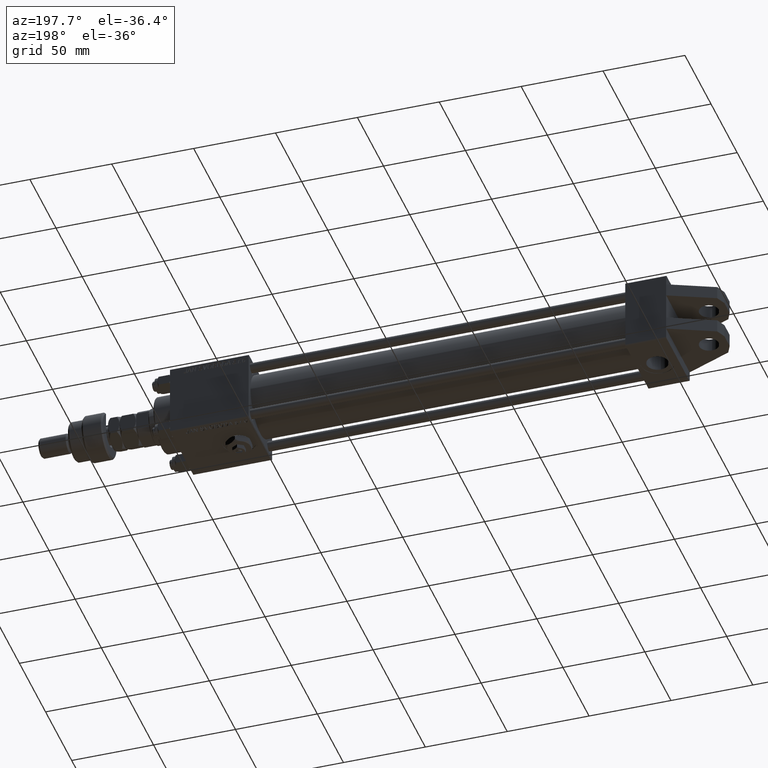
[diagram: clean part render]
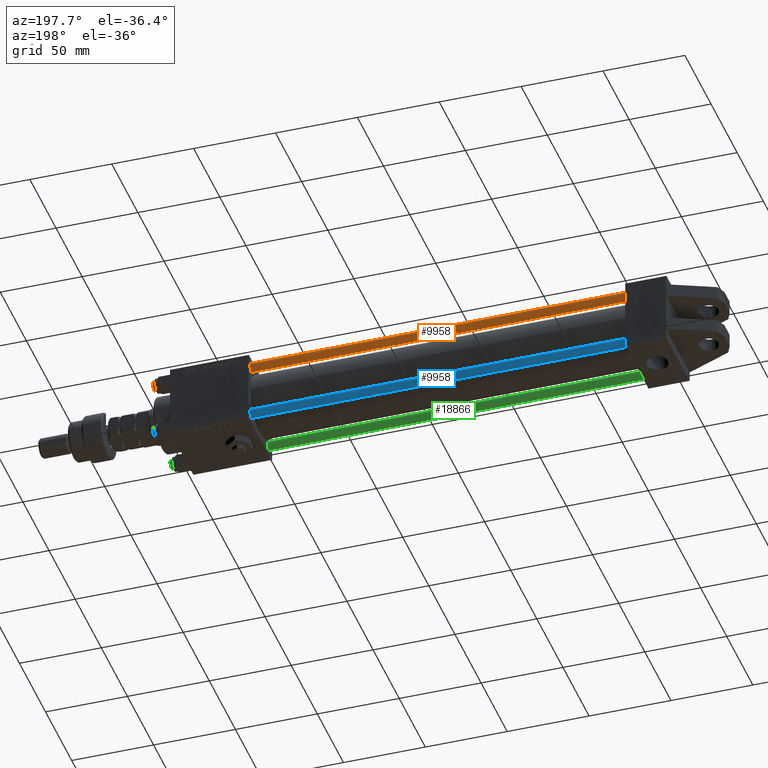
[diagram: same view with three faces highlighted in distinct colors, each labeled with its STEP entity id]
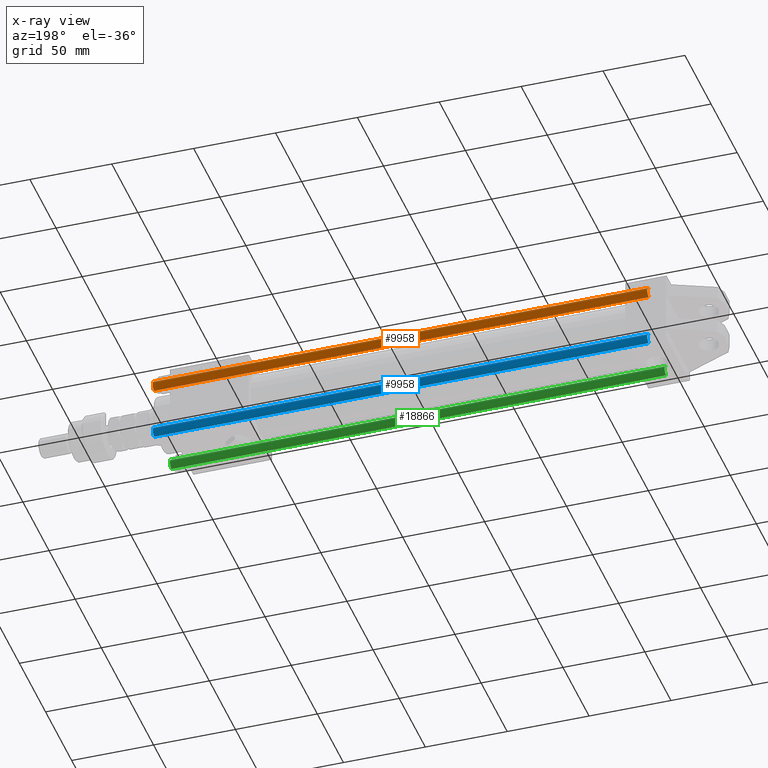
[diagram: x-ray of the same camera — body ghosted, the three highlighted faces saturated]
A machine part, auxiliary view with three faces highlighted in distinct colors.
The next image is the same camera in x-ray (body ghosted, the three faces saturated) — at least one of them is partly hidden behind the body in this view.
Their STEP definitions:

[orange] entity #9958 — the highlighted cylindrical surface (edge-blend (fillet) strip) has radius 3 mm, axis along (-1, 0, -0).
#176 = DIRECTION ( 'NONE',  ( -0.000000000000000000, -0.000000000000000000, -1.000000000000000000 ) ) ;
#1335 = AXIS2_PLACEMENT_3D ( 'NONE', #29165, #176, #33853 ) ;
#1406 = VERTEX_POINT ( 'NONE', #25758 ) ;
#3557 = LINE ( 'NONE', #33088, #8544 ) ;
#4449 = VERTEX_POINT ( 'NONE', #43868 ) ;
#4872 = FACE_OUTER_BOUND ( 'NONE', #14858, .T. ) ;
#5733 = ORIENTED_EDGE ( 'NONE', *, *, #7036, .T. ) ;
#7036 = EDGE_CURVE ( 'NONE', #1406, #4449, #22357, .T. ) ;
#8544 = VECTOR ( 'NONE', #42156, 1000.000000000000000 ) ;
#9958 = ADVANCED_FACE ( 'NONE', ( #4872 ), #34667, .T. ) ;
#10047 = AXIS2_PLACEMENT_3D ( 'NONE', #51326, #30407, #43342 ) ;
#12657 = CARTESIAN_POINT ( 'NONE',  ( 3.000000000000000444, 3.673940397442060361E-16, 302.5000000000000000 ) ) ;
#13033 = LINE ( 'NONE', #16886, #46148 ) ;
#14185 = ORIENTED_EDGE ( 'NONE', *, *, #30506, .T. ) ;
#14858 = EDGE_LOOP ( 'NONE', ( #14185, #47245, #5733, #53392 ) ) ;
#15129 = CARTESIAN_POINT ( 'NONE',  ( 0.000000000000000000, 0.000000000000000000, 0.5000000000001114664 ) ) ;
#16886 = CARTESIAN_POINT ( 'NONE',  ( -3.000000000000000444, 0.000000000000000000, 303.0000000000000000 ) ) ;
#17050 = AXIS2_PLACEMENT_3D ( 'NONE', #15129, #39954, #48486 ) ;
#22357 = CIRCLE ( 'NONE', #17050, 3.000000000000000444 ) ;
#25758 = CARTESIAN_POINT ( 'NONE',  ( 3.000000000000000444, 3.673940397442060361E-16, 0.5000000000001114664 ) ) ;
#27098 = EDGE_CURVE ( 'NONE', #33071, #4449, #13033, .T. ) ;
#29165 = CARTESIAN_POINT ( 'NONE',  ( 0.000000000000000000, 0.000000000000000000, 303.0000000000000000 ) ) ;
#30407 = DIRECTION ( 'NONE',  ( 0.000000000000000000, 0.000000000000000000, -1.000000000000000000 ) ) ;
#30506 = EDGE_CURVE ( 'NONE', #33071, #38484, #33841, .T. ) ;
#33071 = VERTEX_POINT ( 'NONE', #52071 ) ;
#33088 = CARTESIAN_POINT ( 'NONE',  ( 3.000000000000000444, 3.673940397442060361E-16, 303.0000000000000000 ) ) ;
#33841 = CIRCLE ( 'NONE', #10047, 3.000000000000000444 ) ;
#33853 = DIRECTION ( 'NONE',  ( -1.000000000000000000, 0.000000000000000000, 0.000000000000000000 ) ) ;
#34667 = CYLINDRICAL_SURFACE ( 'NONE', #1335, 3.000000000000000444 ) ;
#37612 = EDGE_CURVE ( 'NONE', #38484, #1406, #3557, .T. ) ;
#37862 = DIRECTION ( 'NONE',  ( -0.000000000000000000, -0.000000000000000000, -1.000000000000000000 ) ) ;
#38484 = VERTEX_POINT ( 'NONE', #12657 ) ;
#39954 = DIRECTION ( 'NONE',  ( -0.000000000000000000, -0.000000000000000000, 1.000000000000000000 ) ) ;
#42156 = DIRECTION ( 'NONE',  ( -0.000000000000000000, -0.000000000000000000, -1.000000000000000000 ) ) ;
#43342 = DIRECTION ( 'NONE',  ( 1.000000000000000000, 0.000000000000000000, 0.000000000000000000 ) ) ;
#43868 = CARTESIAN_POINT ( 'NONE',  ( -3.000000000000000444, 0.000000000000000000, 0.5000000000001114664 ) ) ;
#46148 = VECTOR ( 'NONE', #37862, 1000.000000000000000 ) ;
#47245 = ORIENTED_EDGE ( 'NONE', *, *, #37612, .T. ) ;
#48486 = DIRECTION ( 'NONE',  ( 1.000000000000000000, 0.000000000000000000, 0.000000000000000000 ) ) ;
#51326 = CARTESIAN_POINT ( 'NONE',  ( 0.000000000000000000, 0.000000000000000000, 302.5000000000000000 ) ) ;
#52071 = CARTESIAN_POINT ( 'NONE',  ( -3.000000000000000444, 0.000000000000000000, 302.5000000000000000 ) ) ;
#53392 = ORIENTED_EDGE ( 'NONE', *, *, #27098, .F. ) ;

[blue] entity #9958 — the highlighted cylindrical surface (edge-blend (fillet) strip) has radius 3 mm, axis along (1, -0, -0).
#176 = DIRECTION ( 'NONE',  ( -0.000000000000000000, -0.000000000000000000, -1.000000000000000000 ) ) ;
#1335 = AXIS2_PLACEMENT_3D ( 'NONE', #29165, #176, #33853 ) ;
#1406 = VERTEX_POINT ( 'NONE', #25758 ) ;
#3557 = LINE ( 'NONE', #33088, #8544 ) ;
#4449 = VERTEX_POINT ( 'NONE', #43868 ) ;
#4872 = FACE_OUTER_BOUND ( 'NONE', #14858, .T. ) ;
#5733 = ORIENTED_EDGE ( 'NONE', *, *, #7036, .T. ) ;
#7036 = EDGE_CURVE ( 'NONE', #1406, #4449, #22357, .T. ) ;
#8544 = VECTOR ( 'NONE', #42156, 1000.000000000000000 ) ;
#9958 = ADVANCED_FACE ( 'NONE', ( #4872 ), #34667, .T. ) ;
#10047 = AXIS2_PLACEMENT_3D ( 'NONE', #51326, #30407, #43342 ) ;
#12657 = CARTESIAN_POINT ( 'NONE',  ( 3.000000000000000444, 3.673940397442060361E-16, 302.5000000000000000 ) ) ;
#13033 = LINE ( 'NONE', #16886, #46148 ) ;
#14185 = ORIENTED_EDGE ( 'NONE', *, *, #30506, .T. ) ;
#14858 = EDGE_LOOP ( 'NONE', ( #14185, #47245, #5733, #53392 ) ) ;
#15129 = CARTESIAN_POINT ( 'NONE',  ( 0.000000000000000000, 0.000000000000000000, 0.5000000000001114664 ) ) ;
#16886 = CARTESIAN_POINT ( 'NONE',  ( -3.000000000000000444, 0.000000000000000000, 303.0000000000000000 ) ) ;
#17050 = AXIS2_PLACEMENT_3D ( 'NONE', #15129, #39954, #48486 ) ;
#22357 = CIRCLE ( 'NONE', #17050, 3.000000000000000444 ) ;
#25758 = CARTESIAN_POINT ( 'NONE',  ( 3.000000000000000444, 3.673940397442060361E-16, 0.5000000000001114664 ) ) ;
#27098 = EDGE_CURVE ( 'NONE', #33071, #4449, #13033, .T. ) ;
#29165 = CARTESIAN_POINT ( 'NONE',  ( 0.000000000000000000, 0.000000000000000000, 303.0000000000000000 ) ) ;
#30407 = DIRECTION ( 'NONE',  ( 0.000000000000000000, 0.000000000000000000, -1.000000000000000000 ) ) ;
#30506 = EDGE_CURVE ( 'NONE', #33071, #38484, #33841, .T. ) ;
#33071 = VERTEX_POINT ( 'NONE', #52071 ) ;
#33088 = CARTESIAN_POINT ( 'NONE',  ( 3.000000000000000444, 3.673940397442060361E-16, 303.0000000000000000 ) ) ;
#33841 = CIRCLE ( 'NONE', #10047, 3.000000000000000444 ) ;
#33853 = DIRECTION ( 'NONE',  ( -1.000000000000000000, 0.000000000000000000, 0.000000000000000000 ) ) ;
#34667 = CYLINDRICAL_SURFACE ( 'NONE', #1335, 3.000000000000000444 ) ;
#37612 = EDGE_CURVE ( 'NONE', #38484, #1406, #3557, .T. ) ;
#37862 = DIRECTION ( 'NONE',  ( -0.000000000000000000, -0.000000000000000000, -1.000000000000000000 ) ) ;
#38484 = VERTEX_POINT ( 'NONE', #12657 ) ;
#39954 = DIRECTION ( 'NONE',  ( -0.000000000000000000, -0.000000000000000000, 1.000000000000000000 ) ) ;
#42156 = DIRECTION ( 'NONE',  ( -0.000000000000000000, -0.000000000000000000, -1.000000000000000000 ) ) ;
#43342 = DIRECTION ( 'NONE',  ( 1.000000000000000000, 0.000000000000000000, 0.000000000000000000 ) ) ;
#43868 = CARTESIAN_POINT ( 'NONE',  ( -3.000000000000000444, 0.000000000000000000, 0.5000000000001114664 ) ) ;
#46148 = VECTOR ( 'NONE', #37862, 1000.000000000000000 ) ;
#47245 = ORIENTED_EDGE ( 'NONE', *, *, #37612, .T. ) ;
#48486 = DIRECTION ( 'NONE',  ( 1.000000000000000000, 0.000000000000000000, 0.000000000000000000 ) ) ;
#51326 = CARTESIAN_POINT ( 'NONE',  ( 0.000000000000000000, 0.000000000000000000, 302.5000000000000000 ) ) ;
#52071 = CARTESIAN_POINT ( 'NONE',  ( -3.000000000000000444, 0.000000000000000000, 302.5000000000000000 ) ) ;
#53392 = ORIENTED_EDGE ( 'NONE', *, *, #27098, .F. ) ;

[green] entity #18866 — the highlighted cylindrical surface (edge-blend (fillet) strip) has radius 3 mm, axis along (-1, -0, 0).
#1406 = VERTEX_POINT ( 'NONE', #25758 ) ;
#3557 = LINE ( 'NONE', #33088, #8544 ) ;
#3842 = DIRECTION ( 'NONE',  ( 1.000000000000000000, 0.000000000000000000, 0.000000000000000000 ) ) ;
#4449 = VERTEX_POINT ( 'NONE', #43868 ) ;
#5892 = CYLINDRICAL_SURFACE ( 'NONE', #10342, 3.000000000000000444 ) ;
#7343 = EDGE_LOOP ( 'NONE', ( #36929, #10951, #16801, #13746 ) ) ;
#8544 = VECTOR ( 'NONE', #42156, 1000.000000000000000 ) ;
#10342 = AXIS2_PLACEMENT_3D ( 'NONE', #39277, #18046, #34608 ) ;
#10951 = ORIENTED_EDGE ( 'NONE', *, *, #37420, .T. ) ;
#12657 = CARTESIAN_POINT ( 'NONE',  ( 3.000000000000000444, 3.673940397442060361E-16, 302.5000000000000000 ) ) ;
#13033 = LINE ( 'NONE', #16886, #46148 ) ;
#13538 = DIRECTION ( 'NONE',  ( 0.000000000000000000, 0.000000000000000000, -1.000000000000000000 ) ) ;
#13746 = ORIENTED_EDGE ( 'NONE', *, *, #39306, .T. ) ;
#16801 = ORIENTED_EDGE ( 'NONE', *, *, #27098, .T. ) ;
#16886 = CARTESIAN_POINT ( 'NONE',  ( -3.000000000000000444, 0.000000000000000000, 303.0000000000000000 ) ) ;
#18046 = DIRECTION ( 'NONE',  ( -0.000000000000000000, -0.000000000000000000, -1.000000000000000000 ) ) ;
#18866 = ADVANCED_FACE ( 'NONE', ( #26047 ), #5892, .T. ) ;
#20906 = AXIS2_PLACEMENT_3D ( 'NONE', #43296, #13538, #22608 ) ;
#22608 = DIRECTION ( 'NONE',  ( 1.000000000000000000, 0.000000000000000000, 0.000000000000000000 ) ) ;
#25758 = CARTESIAN_POINT ( 'NONE',  ( 3.000000000000000444, 3.673940397442060361E-16, 0.5000000000001114664 ) ) ;
#26047 = FACE_OUTER_BOUND ( 'NONE', #7343, .T. ) ;
#27098 = EDGE_CURVE ( 'NONE', #33071, #4449, #13033, .T. ) ;
#32461 = AXIS2_PLACEMENT_3D ( 'NONE', #41628, #50698, #3842 ) ;
#33071 = VERTEX_POINT ( 'NONE', #52071 ) ;
#33088 = CARTESIAN_POINT ( 'NONE',  ( 3.000000000000000444, 3.673940397442060361E-16, 303.0000000000000000 ) ) ;
#34194 = CIRCLE ( 'NONE', #32461, 3.000000000000000444 ) ;
#34608 = DIRECTION ( 'NONE',  ( -1.000000000000000000, 0.000000000000000000, 0.000000000000000000 ) ) ;
#36929 = ORIENTED_EDGE ( 'NONE', *, *, #37612, .F. ) ;
#37420 = EDGE_CURVE ( 'NONE', #38484, #33071, #44688, .T. ) ;
#37612 = EDGE_CURVE ( 'NONE', #38484, #1406, #3557, .T. ) ;
#37862 = DIRECTION ( 'NONE',  ( -0.000000000000000000, -0.000000000000000000, -1.000000000000000000 ) ) ;
#38484 = VERTEX_POINT ( 'NONE', #12657 ) ;
#39277 = CARTESIAN_POINT ( 'NONE',  ( 0.000000000000000000, 0.000000000000000000, 303.0000000000000000 ) ) ;
#39306 = EDGE_CURVE ( 'NONE', #4449, #1406, #34194, .T. ) ;
#41628 = CARTESIAN_POINT ( 'NONE',  ( 0.000000000000000000, 0.000000000000000000, 0.5000000000001114664 ) ) ;
#42156 = DIRECTION ( 'NONE',  ( -0.000000000000000000, -0.000000000000000000, -1.000000000000000000 ) ) ;
#43296 = CARTESIAN_POINT ( 'NONE',  ( 0.000000000000000000, 0.000000000000000000, 302.5000000000000000 ) ) ;
#43868 = CARTESIAN_POINT ( 'NONE',  ( -3.000000000000000444, 0.000000000000000000, 0.5000000000001114664 ) ) ;
#44688 = CIRCLE ( 'NONE', #20906, 3.000000000000000444 ) ;
#46148 = VECTOR ( 'NONE', #37862, 1000.000000000000000 ) ;
#50698 = DIRECTION ( 'NONE',  ( -0.000000000000000000, -0.000000000000000000, 1.000000000000000000 ) ) ;
#52071 = CARTESIAN_POINT ( 'NONE',  ( -3.000000000000000444, 0.000000000000000000, 302.5000000000000000 ) ) ;